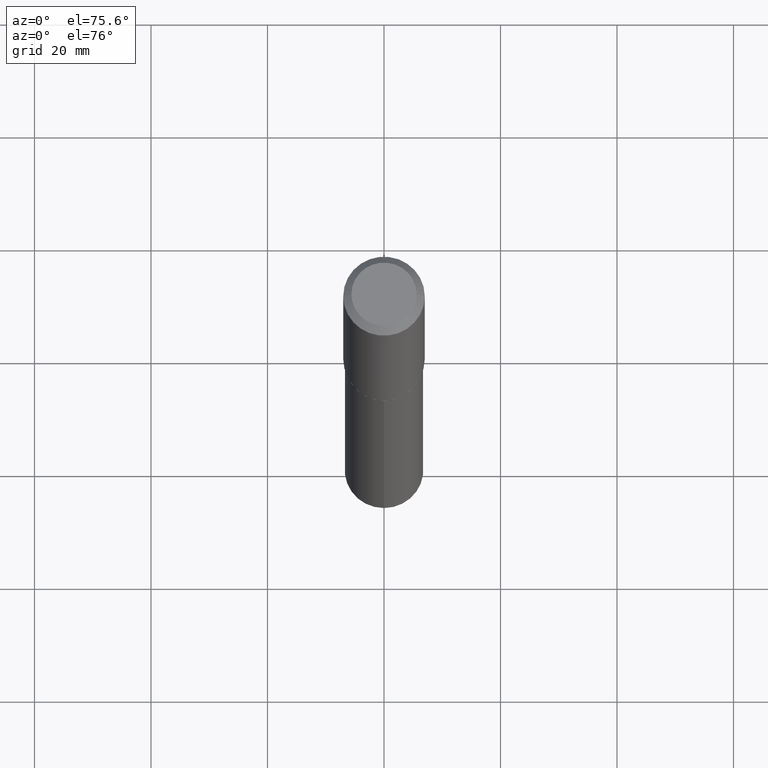
[diagram: clean part render]
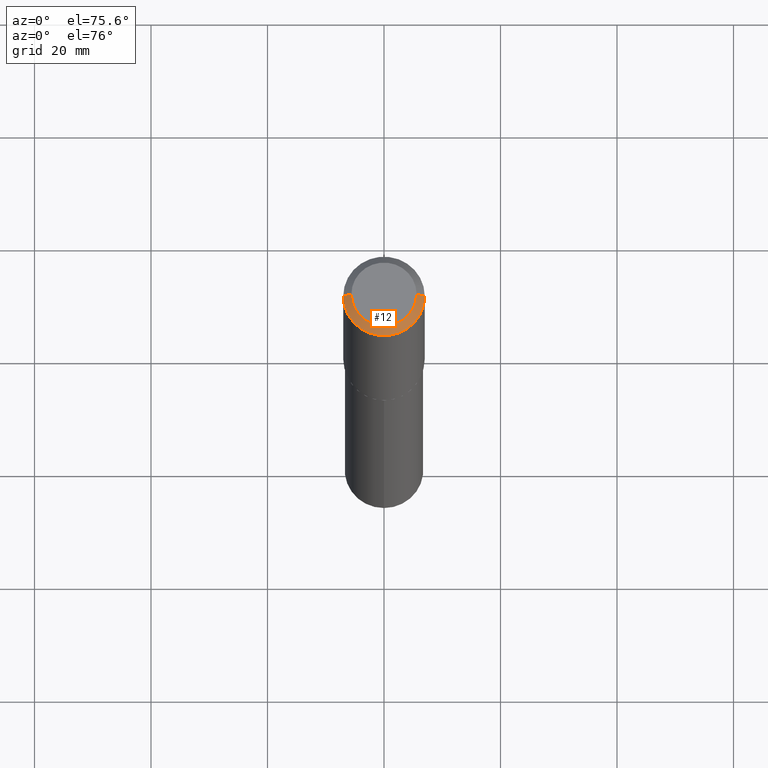
[diagram: same view with one face highlighted and labeled with its STEP entity id]
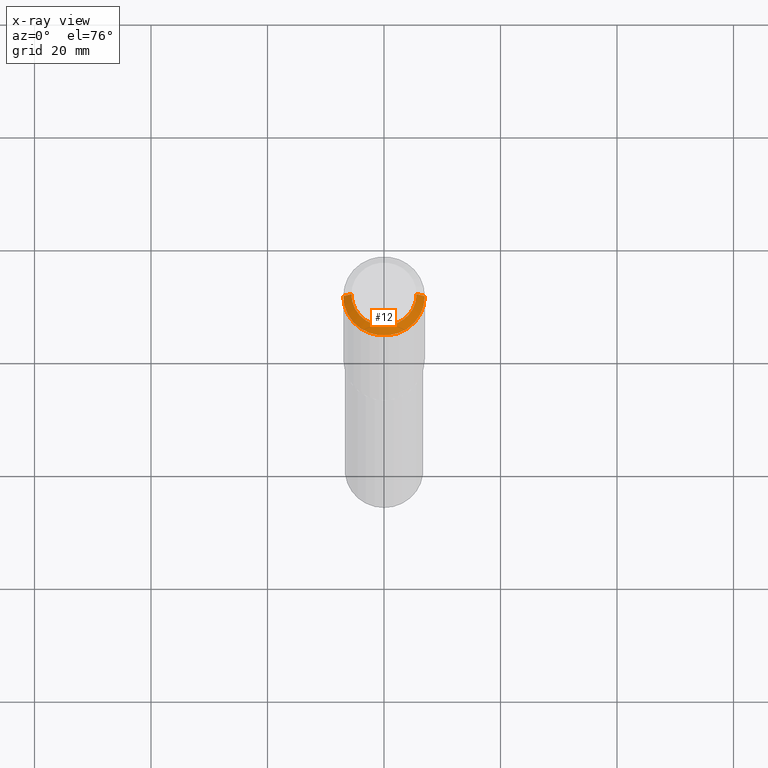
[diagram: x-ray of the same camera — body ghosted, the highlighted face saturated]
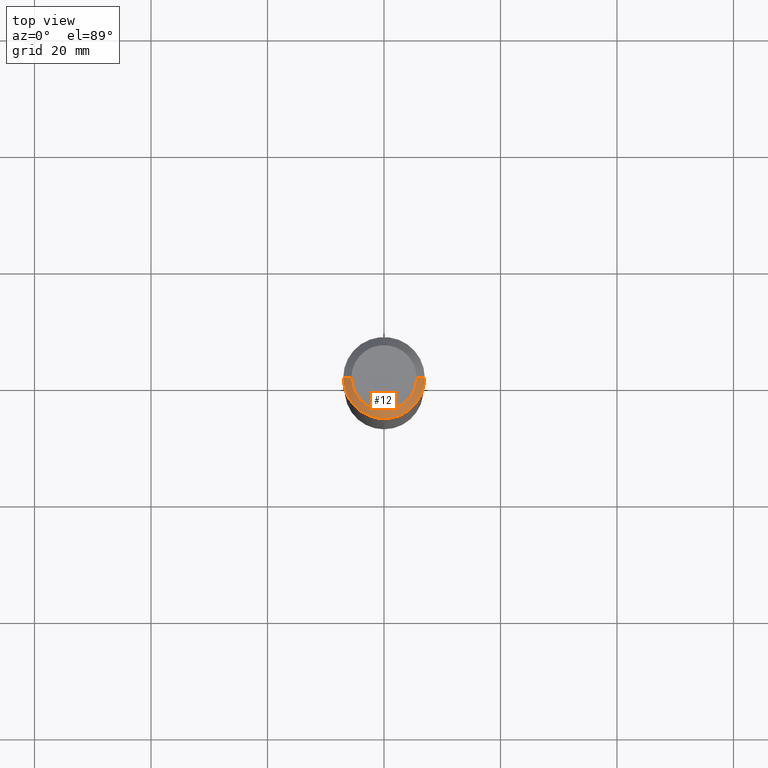
[diagram: same view with one face highlighted and labeled with its STEP entity id]
A machine part, auxiliary view. The second image highlights one B-rep face of the part: STEP entity #12.
The next image is the same camera in x-ray: the body ghosted, the highlighted face saturated — about 0% of this face is hidden behind the body in this view.
A second angle (top view) of the same face is appended — the face is thin or edge-on in the first view.
In plain terms, the highlighted conical surface has half-angle 45 deg.
Its self-contained STEP definition (entity closure, byte-faithful):
#1 = LINE ( 'NONE', #376, #362 ) ;
#12 = ADVANCED_FACE ( 'NONE', ( #408 ), #314, .T. ) ;
#22 = CARTESIAN_POINT ( 'NONE',  ( 1.347942405969256063E-30, -1.924504513970354330E-16, -0.05512000000000035621 ) ) ;
#31 = DIRECTION ( 'NONE',  ( 0.7071067811865453523, -7.319954787623248157E-15, -0.7071067811865496822 ) ) ;
#36 = VERTEX_POINT ( 'NONE', #233 ) ;
#76 = CARTESIAN_POINT ( 'NONE',  ( -9.439721640706190018E-47, 1.347742071746724849E-32, 3.860086710912454339E-18 ) ) ;
#109 = DIRECTION ( 'NONE',  ( -2.445468806185136597E-29, 3.491481338843145583E-15, 1.000000000000000000 ) ) ;
#122 = AXIS2_PLACEMENT_3D ( 'NONE', #22, #182, #153 ) ;
#138 = CIRCLE ( 'NONE', #149, 0.2204800000000000093 ) ;
#149 = AXIS2_PLACEMENT_3D ( 'NONE', #76, #109, #238 ) ;
#153 = DIRECTION ( 'NONE',  ( -1.000000000000000000, 6.982962677686269077E-15, 0.000000000000000000 ) ) ;
#159 = ORIENTED_EDGE ( 'NONE', *, *, #242, .F. ) ;
#174 = CARTESIAN_POINT ( 'NONE',  ( -0.2204800000000000093, 1.635828836874783961E-15, 3.860086710901350968E-18 ) ) ;
#177 = VERTEX_POINT ( 'NONE', #174 ) ;
#182 = DIRECTION ( 'NONE',  ( 2.445468806185136597E-29, -3.491481338843145583E-15, -1.000000000000000000 ) ) ;
#195 = LINE ( 'NONE', #381, #462 ) ;
#196 = EDGE_CURVE ( 'NONE', #36, #349, #467, .T. ) ;
#228 = DIRECTION ( 'NONE',  ( -0.7071067811865453523, 2.468850131082234184E-15, -0.7071067811865496822 ) ) ;
#233 = CARTESIAN_POINT ( 'NONE',  ( -0.2756000000000000116, -1.211258607426886733E-15, -0.05512000000000035621 ) ) ;
#238 = DIRECTION ( 'NONE',  ( 1.000000000000000000, -6.982962677686266711E-15, 4.876132675269083677E-29 ) ) ;
#240 = ORIENTED_EDGE ( 'NONE', *, *, #296, .T. ) ;
#242 = EDGE_CURVE ( 'NONE', #246, #349, #195, .T. ) ;
#246 = VERTEX_POINT ( 'NONE', #447 ) ;
#247 = CARTESIAN_POINT ( 'NONE',  ( 1.347942405969256063E-30, -1.924504513970354330E-16, -0.05512000000000035621 ) ) ;
#296 = EDGE_CURVE ( 'NONE', #177, #36, #1, .T. ) ;
#298 = EDGE_CURVE ( 'NONE', #177, #246, #138, .T. ) ;
#303 = AXIS2_PLACEMENT_3D ( 'NONE', #247, #398, #321 ) ;
#304 = ORIENTED_EDGE ( 'NONE', *, *, #298, .F. ) ;
#314 = CONICAL_SURFACE ( 'NONE', #122, 0.2756000000000000116, 0.7853981633974452814 ) ;
#321 = DIRECTION ( 'NONE',  ( 1.000000000000000000, -6.982962677686265922E-15, 0.000000000000000000 ) ) ;
#349 = VERTEX_POINT ( 'NONE', #415 ) ;
#362 = VECTOR ( 'NONE', #228, 39.37007874015748143 ) ;
#376 = CARTESIAN_POINT ( 'NONE',  ( -0.2756000000000000116, 1.732054062573300039E-15, -0.05512000000000035621 ) ) ;
#381 = CARTESIAN_POINT ( 'NONE',  ( 0.2756000000000000116, -2.083203699582869812E-15, -0.05512000000000035621 ) ) ;
#397 = ORIENTED_EDGE ( 'NONE', *, *, #196, .T. ) ;
#398 = DIRECTION ( 'NONE',  ( -2.445468806185136597E-29, 3.491481338843145583E-15, 1.000000000000000000 ) ) ;
#408 = FACE_OUTER_BOUND ( 'NONE', #454, .T. ) ;
#415 = CARTESIAN_POINT ( 'NONE',  ( 0.2756000000000000116, -2.116954965367370658E-15, -0.05512000000000035621 ) ) ;
#447 = CARTESIAN_POINT ( 'NONE',  ( 0.2204800000000000093, -1.797903149065768707E-15, 3.860086710924123164E-18 ) ) ;
#454 = EDGE_LOOP ( 'NONE', ( #159, #304, #240, #397 ) ) ;
#462 = VECTOR ( 'NONE', #31, 39.37007874015748143 ) ;
#467 = CIRCLE ( 'NONE', #303, 0.2756000000000000116 ) ;